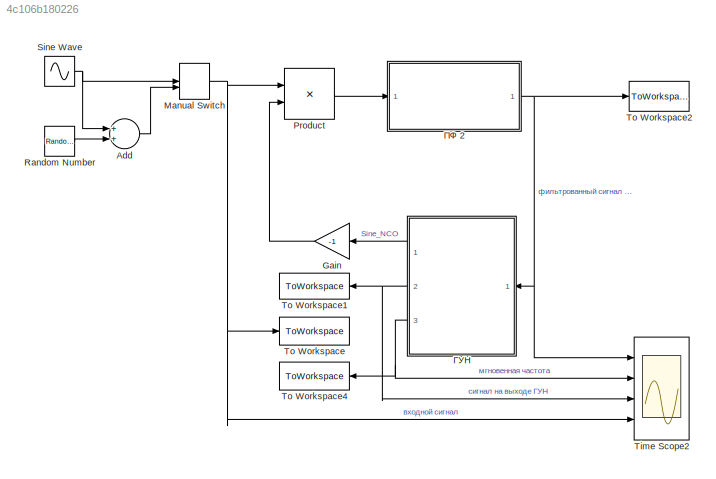
MODEL slx_4c106b180226
KIND model
CONFIG AbsTol = auto
CONFIG EnableMultiTasking = on
CONFIG FixedStep = auto
CONFIG MaxStep = auto
CONFIG MinStep = auto
CONFIG PreLoadFcn = pr662_configure_pll2;
CONFIG RelTol = 1e-3
CONFIG SampleTimeConstraint = Unconstrained
CONFIG Solver = VariableStepDiscrete
CONFIG SolverName = VariableStepDiscrete
CONFIG StartFcn = close all;
CONFIG StartTime = 0.0
CONFIG StopTime = (n-1)*T
BLOCK [Sum] Add
  InputSameDT = off
  OutDataTypeStr = Inherit: Inherit via internal rule
  Ports = [2, 1]
  SaturateOnIntegerOverflow = off
BLOCK [Gain] Gain
  Gain = -1
  OutDataTypeStr = Inherit: Inherit via internal rule
  ParamDataTypeStr = Inherit: Inherit via internal rule
  SaturateOnIntegerOverflow = off
BLOCK [ManualSwitch] Manual Switch
BLOCK [Product] Product
  InputSameDT = off
  OutDataTypeStr = Inherit: Inherit via internal rule
  Ports = [2, 1]
  RndMeth = Floor
  SaturateOnIntegerOverflow = off
BLOCK [RandomNumber] Random Number
  SampleTime = 1/fs
  Variance = awgn
BLOCK [Sin] Sine Wave
  Frequency = 2*pi*(fq+ferr)
  Phase = pi/5
  Ports = [0, 1]
  SampleTime = 0
BLOCK [Scope] Time Scope2
  DefaultConfigurationName = spbscopes.TimeScopeBlockCfg
  Floating = off
  NumInputPorts = 4
  Ports = [4]
  ScopeSpecificationString = spbscopes.TimeScopeBlockCfg('CurrentConfiguration', extmgr.ConfigurationSet(extmgr.Configuration('Core','General UI',true,'ShowStatusbar',false,'FigureColor',[0.941176470588235 0.941176470588235 0.941176470588235]),extmgr.Configuration('Core','Source UI',true),extmgr.Configuration('Sources','WiredSimulink',true,'PointsPerSignal',500000,'DataLoggingVariableName','ScopeData11'),extmgr.Configuration(...<+4352ch>
  UserDataPersistent = on
BLOCK [ToWorkspace] To Workspace
  MaxDataPoints = inf
  Ports = [1]
  SampleTime = -1
  VariableName = Reference
BLOCK [ToWorkspace] To Workspace1
  MaxDataPoints = inf
  Ports = [1]
  SampleTime = -1
  VariableName = Synthesised
BLOCK [ToWorkspace] To Workspace2
  MaxDataPoints = inf
  Ports = [1]
  SampleTime = -1
  VariableName = Error
BLOCK [ToWorkspace] To Workspace4
  MaxDataPoints = inf
  Ports = [1]
  SampleTime = -1
  VariableName = Freq
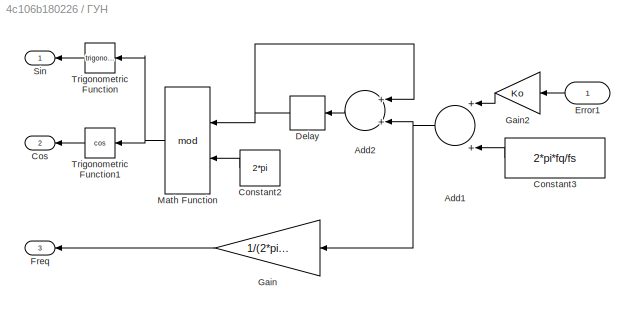
BLOCK [SubSystem] ГУН
  Ports = [1, 3]
  RequestExecContextInheritance = off
BLOCK [Sum] ГУН/Add1
  AccumDataTypeStr = single
  InputSameDT = off
  OutDataTypeStr = Inherit: Inherit via internal rule
  Ports = [2, 1]
  SaturateOnIntegerOverflow = off
BLOCK [Sum] ГУН/Add2
  AccumDataTypeStr = single
  InputSameDT = off
  OutDataTypeStr = Inherit: Inherit via internal rule
  Ports = [2, 1]
  SaturateOnIntegerOverflow = off
BLOCK [Constant] ГУН/Constant2
  OutDataTypeStr = double
  Value = 2*pi
BLOCK [Constant] ГУН/Constant3
  OutDataTypeStr = double
  Value = 2*pi*fq/fs
BLOCK [Outport] ГУН/Cos
  IconDisplay = Port number
  Port = 2
BLOCK [Delay] ГУН/Delay
  DelayLength = 1
  InitialCondition = 0.001
  InputPortMap = u0
  Ports = [1, 1]
BLOCK [Inport] ГУН/Error1
  IconDisplay = Port number
BLOCK [Outport] ГУН/Freq
  IconDisplay = Port number
  Port = 3
BLOCK [Gain] ГУН/Gain
  Gain = 1/(2*pi*1/fs)
  OutDataTypeStr = Inherit: Inherit via internal rule
  ParamDataTypeStr = Inherit: Inherit via internal rule
  SaturateOnIntegerOverflow = off
BLOCK [Gain] ГУН/Gain2
  Gain = Ko
  OutDataTypeStr = single
  ParamDataTypeStr = Inherit: Inherit via internal rule
  SaturateOnIntegerOverflow = off
BLOCK [Math] ГУН/Math Function
  Operator = mod
  Ports = [2, 1]
BLOCK [Outport] ГУН/Sin
  IconDisplay = Port number
BLOCK [Trigonometry] ГУН/Trigonometric Function
  Ports = [1, 1]
BLOCK [Trigonometry] ГУН/Trigonometric Function1
  Operator = cos
  Ports = [1, 1]
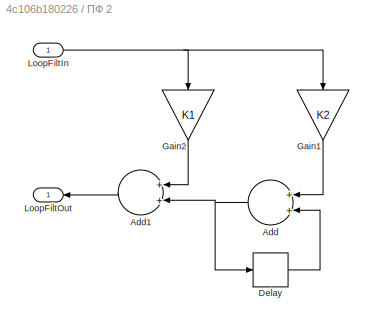
BLOCK [SubSystem] ПФ 2
  Ports = [1, 1]
  RequestExecContextInheritance = off
BLOCK [Sum] ПФ 2/Add
  InputSameDT = off
  OutDataTypeStr = Inherit: Inherit via internal rule
  Ports = [2, 1]
  SaturateOnIntegerOverflow = off
BLOCK [Sum] ПФ 2/Add1
  InputSameDT = off
  OutDataTypeStr = Inherit: Inherit via internal rule
  Ports = [2, 1]
  SaturateOnIntegerOverflow = off
BLOCK [Delay] ПФ 2/Delay
  DelayLength = 1
  InputPortMap = u0
  Ports = [1, 1]
BLOCK [Gain] ПФ 2/Gain1
  Gain = K2
  OutDataTypeStr = Inherit: Inherit via internal rule
  ParamDataTypeStr = Inherit: Inherit via internal rule
  SaturateOnIntegerOverflow = off
BLOCK [Gain] ПФ 2/Gain2
  Gain = K1
  OutDataTypeStr = Inherit: Inherit via internal rule
  ParamDataTypeStr = Inherit: Inherit via internal rule
  SaturateOnIntegerOverflow = off
BLOCK [Inport] ПФ 2/LoopFiltIn
  IconDisplay = Port number
BLOCK [Outport] ПФ 2/LoopFiltOut
  IconDisplay = Port number
LINE Add:1 -> Manual Switch:2
LINE Gain:1 -> Product:2
NET Manual Switch:1 -> Product:1, Time Scope2:4, To Workspace:1
LINE Product:1 -> ПФ 2:1
LINE Random Number:1 -> Add:2
NET Sine Wave:1 -> Add:1, Manual Switch:1
NET ГУН/Add1:1 -> ГУН/Add2:2, ГУН/Gain:1
LINE ГУН/Add2:1 -> ГУН/Delay:1
LINE ГУН/Constant2:1 -> ГУН/Math Function:2
LINE ГУН/Constant3:1 -> ГУН/Add1:2
NET ГУН/Delay:1 -> ГУН/Add2:1, ГУН/Math Function:1
LINE ГУН/Error1:1 -> ГУН/Gain2:1
LINE ГУН/Gain2:1 -> ГУН/Add1:1
LINE ГУН/Gain:1 -> ГУН/Freq:1
NET ГУН/Math Function:1 -> ГУН/Trigonometric Function1:1, ГУН/Trigonometric Function:1
LINE ГУН/Trigonometric Function1:1 -> ГУН/Cos:1
LINE ГУН/Trigonometric Function:1 -> ГУН/Sin:1
LINE ГУН:1 -> Gain:1
NET ГУН:2 -> Time Scope2:3, To Workspace1:1
NET ГУН:3 -> Time Scope2:2, To Workspace4:1
LINE ПФ 2/Add1:1 -> ПФ 2/LoopFiltOut:1
NET ПФ 2/Add:1 -> ПФ 2/Add1:2, ПФ 2/Delay:1
LINE ПФ 2/Delay:1 -> ПФ 2/Add:2
LINE ПФ 2/Gain1:1 -> ПФ 2/Add:1
LINE ПФ 2/Gain2:1 -> ПФ 2/Add1:1
NET ПФ 2/LoopFiltIn:1 -> ПФ 2/Gain1:1, ПФ 2/Gain2:1
NET ПФ 2:1 -> Time Scope2:1, To Workspace2:1, ГУН:1
note: NET lines group one-source signal fan-out (src -> all destinations, sorted); 1:1 wires keep LINE
